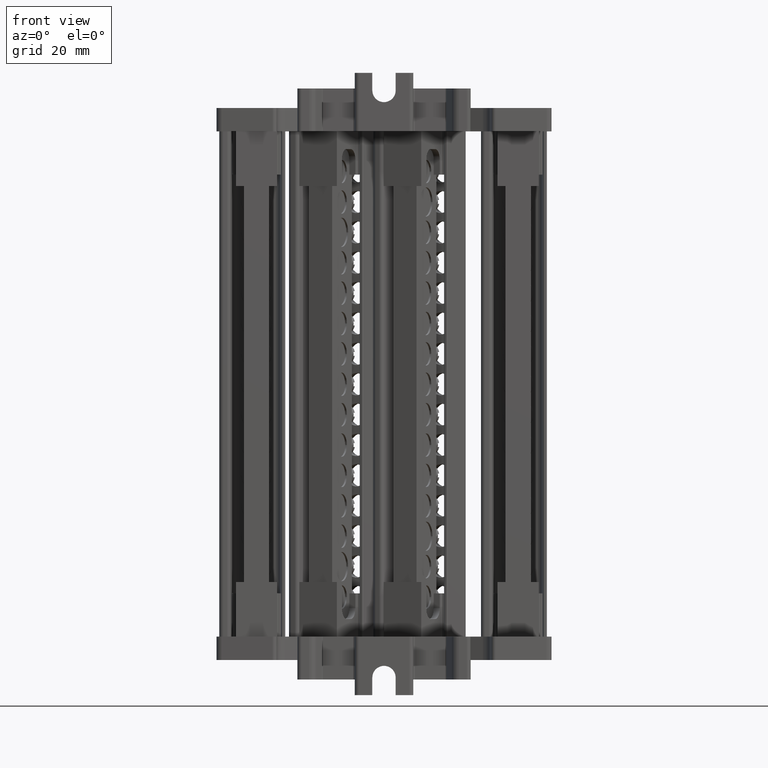
[diagram: clean part render]
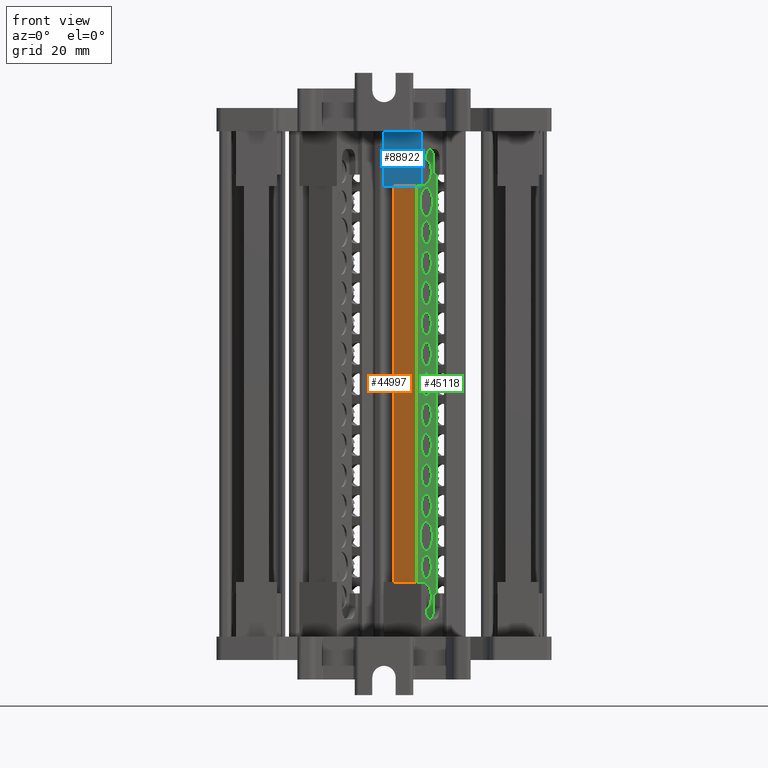
[diagram: same view with three faces highlighted in distinct colors, each labeled with its STEP entity id]
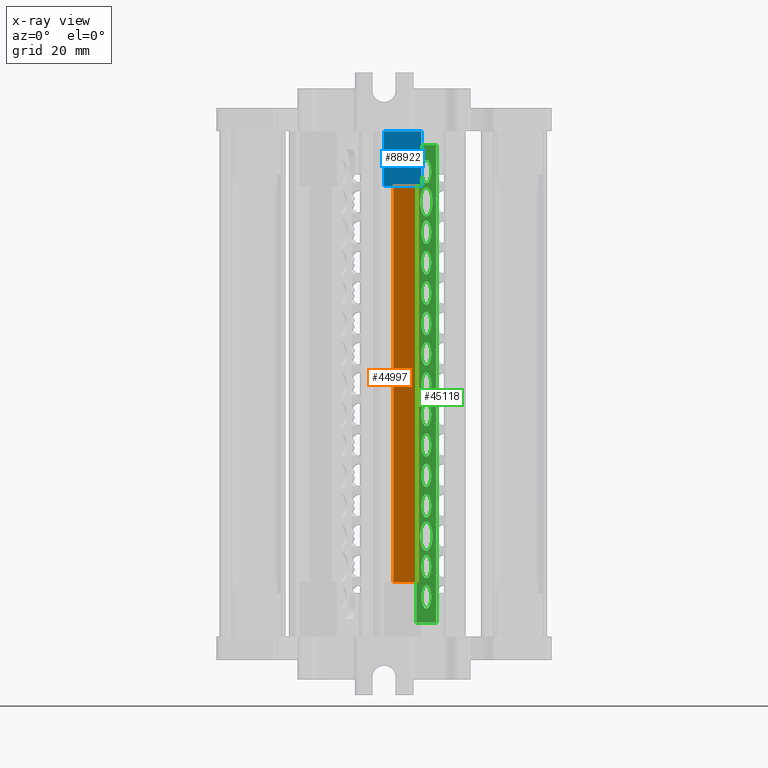
[diagram: x-ray of the same camera — body ghosted, the three highlighted faces saturated]
A machine part, front view with three faces highlighted in distinct colors.
The next image is the same camera in x-ray (body ghosted, the three faces saturated) — at least one of them is partly hidden behind the body in this view.
Their STEP definitions:

[orange] entity #44997 — the highlighted planar face has unit normal (0.4226, 0.9063, -0).
#107 = EDGE_LOOP ( 'NONE', ( #108904, #116199, #108925, #116096 ) ) ;
#14619 = AXIS2_PLACEMENT_3D ( 'NONE', #93181, #93208, #93162 ) ;
#44997 = ADVANCED_FACE ( 'NONE', ( #93199 ), #93163, .F. ) ;
#45711 = EDGE_CURVE ( 'NONE', #95113, #95402, #107215, .T. ) ;
#45724 = EDGE_CURVE ( 'NONE', #95200, #95307, #107347, .T. ) ;
#45748 = EDGE_CURVE ( 'NONE', #95200, #95113, #107390, .T. ) ;
#45801 = EDGE_CURVE ( 'NONE', #95307, #95402, #105453, .T. ) ;
#56486 = CARTESIAN_POINT ( 'NONE',  ( 401.5199442104104200, -98.70056587070742200, 82.27722964847156100 ) ) ;
#56557 = CARTESIAN_POINT ( 'NONE',  ( 395.6289435946725300, -95.95354716939208100, 82.27722964847163200 ) ) ;
#56633 = CARTESIAN_POINT ( 'NONE',  ( 401.5199442104072300, -98.70056587070975200, -19.38801364844760800 ) ) ;
#56646 = CARTESIAN_POINT ( 'NONE',  ( 395.6289435946673600, -95.95354716939080200, -19.38801364844768200 ) ) ;
#93162 = DIRECTION ( 'NONE',  ( -0.9063077870365878800, 0.4226182617408324500, 0.0000000000000000000 ) ) ;
#93163 = PLANE ( 'NONE',  #14619 ) ;
#93181 = CARTESIAN_POINT ( 'NONE',  ( 395.6289435946656600, -95.95354716939333200, -29.87739199998634700 ) ) ;
#93199 = FACE_OUTER_BOUND ( 'NONE', #107, .T. ) ;
#93208 = DIRECTION ( 'NONE',  ( 0.4226182617408325000, 0.9063077870365879900, -7.754922675462960100E-014 ) ) ;
#93717 = VECTOR ( 'NONE', #107220, 1000.000000000000000 ) ;
#93721 = VECTOR ( 'NONE', #107290, 1000.000000000000000 ) ;
#93739 = VECTOR ( 'NONE', #105148, 1000.000000000000100 ) ;
#93830 = VECTOR ( 'NONE', #105374, 1000.000000000000100 ) ;
#95113 = VERTEX_POINT ( 'NONE', #56486 ) ;
#95200 = VERTEX_POINT ( 'NONE', #56557 ) ;
#95307 = VERTEX_POINT ( 'NONE', #56646 ) ;
#95402 = VERTEX_POINT ( 'NONE', #56633 ) ;
#105148 = DIRECTION ( 'NONE',  ( 0.9063077870365878800, -0.4226182617408324500, -0.0000000000000000000 ) ) ;
#105374 = DIRECTION ( 'NONE',  ( 0.9063077870364585300, -0.4226182617411098900, 2.188420385077602700E-014 ) ) ;
#105425 = CARTESIAN_POINT ( 'NONE',  ( 395.6289435946672500, -95.95354716939111500, -19.38801364844764700 ) ) ;
#105453 = LINE ( 'NONE', #105425, #93830 ) ;
#107191 = CARTESIAN_POINT ( 'NONE',  ( 401.5199442104087100, -98.70056587071117300, -29.87739199998634700 ) ) ;
#107215 = LINE ( 'NONE', #107191, #93717 ) ;
#107220 = DIRECTION ( 'NONE',  ( -3.277371941038721700E-014, -7.028346808638690700E-014, -1.000000000000000000 ) ) ;
#107290 = DIRECTION ( 'NONE',  ( -4.642890210157350900E-014, 2.165015260970073500E-014, -1.000000000000000000 ) ) ;
#107301 = CARTESIAN_POINT ( 'NONE',  ( 395.6289435946683300, -95.95354716938754800, -29.87739199998729200 ) ) ;
#107347 = LINE ( 'NONE', #107301, #93721 ) ;
#107390 = LINE ( 'NONE', #107448, #93739 ) ;
#107448 = CARTESIAN_POINT ( 'NONE',  ( 395.6289435946693500, -95.95354716938544500, 82.27722964847158900 ) ) ;
#108904 = ORIENTED_EDGE ( 'NONE', *, *, #45711, .F. ) ;
#108925 = ORIENTED_EDGE ( 'NONE', *, *, #45724, .T. ) ;
#116096 = ORIENTED_EDGE ( 'NONE', *, *, #45801, .T. ) ;
#116199 = ORIENTED_EDGE ( 'NONE', *, *, #45748, .F. ) ;

[blue] entity #88922 — the highlighted planar face has unit normal (-0.4226, -0.9063, -0).
#15260 = VECTOR ( 'NONE', #16484, 1000.000000000000100 ) ;
#16481 = LINE ( 'NONE', #16504, #15260 ) ;
#16484 = DIRECTION ( 'NONE',  ( 0.9063077870366494900, -0.4226182617407002200, 0.0000000000000000000 ) ) ;
#16504 = CARTESIAN_POINT ( 'NONE',  ( 369.1089821040920400, -85.26032163160803600, 82.27722964847171700 ) ) ;
#21556 = VERTEX_POINT ( 'NONE', #73156 ) ;
#21562 = VERTEX_POINT ( 'NONE', #73103 ) ;
#24295 = VECTOR ( 'NONE', #25925, 1000.000000000000100 ) ;
#25925 = DIRECTION ( 'NONE',  ( 0.9063077870366591500, -0.4226182617406796200, 0.0000000000000000000 ) ) ;
#25940 = LINE ( 'NONE', #25956, #24295 ) ;
#25956 = CARTESIAN_POINT ( 'NONE',  ( 393.1261384605620000, -96.45970556773747300, 96.29460800001189100 ) ) ;
#33866 = EDGE_CURVE ( 'NONE', #21556, #21562, #25940, .T. ) ;
#36360 = EDGE_CURVE ( 'NONE', #96668, #96595, #16481, .T. ) ;
#50592 = AXIS2_PLACEMENT_3D ( 'NONE', #53382, #53356, #53362 ) ;
#53356 = DIRECTION ( 'NONE',  ( -0.4226182617407002700, -0.9063077870366496000, -9.420882699251660000E-014 ) ) ;
#53359 = PLANE ( 'NONE',  #50592 ) ;
#53362 = DIRECTION ( 'NONE',  ( 0.9063077870366494900, -0.4226182617407002200, 0.0000000000000000000 ) ) ;
#53381 = FACE_OUTER_BOUND ( 'NONE', #78285, .T. ) ;
#53382 = CARTESIAN_POINT ( 'NONE',  ( 369.1089821040914700, -85.26032163160923000, 96.29460800001101000 ) ) ;
#54982 = ORIENTED_EDGE ( 'NONE', *, *, #36360, .T. ) ;
#55003 = ORIENTED_EDGE ( 'NONE', *, *, #33866, .F. ) ;
#55006 = ORIENTED_EDGE ( 'NONE', *, *, #63269, .T. ) ;
#55035 = ORIENTED_EDGE ( 'NONE', *, *, #63097, .F. ) ;
#61612 = CARTESIAN_POINT ( 'NONE',  ( 402.7409765116762500, -100.9431781828914900, 82.27722964847154700 ) ) ;
#61793 = CARTESIAN_POINT ( 'NONE',  ( 393.1261384605625200, -96.45970556773623600, 82.27722964847178800 ) ) ;
#63097 = EDGE_CURVE ( 'NONE', #21562, #96595, #116028, .T. ) ;
#63269 = EDGE_CURVE ( 'NONE', #21556, #96668, #116216, .T. ) ;
#73103 = CARTESIAN_POINT ( 'NONE',  ( 402.7409765116764200, -100.9431781828919600, 96.29460800001187700 ) ) ;
#73156 = CARTESIAN_POINT ( 'NONE',  ( 393.1261384605620000, -96.45970556773745800, 96.29460800001189100 ) ) ;
#78285 = EDGE_LOOP ( 'NONE', ( #55003, #55006, #54982, #55035 ) ) ;
#88922 = ADVANCED_FACE ( 'NONE', ( #53381 ), #53359, .T. ) ;
#96595 = VERTEX_POINT ( 'NONE', #61612 ) ;
#96668 = VERTEX_POINT ( 'NONE', #61793 ) ;
#108313 = VECTOR ( 'NONE', #116056, 1000.000000000000000 ) ;
#108553 = VECTOR ( 'NONE', #116262, 1000.000000000000000 ) ;
#116028 = LINE ( 'NONE', #116055, #108313 ) ;
#116055 = CARTESIAN_POINT ( 'NONE',  ( 402.7409765116746600, -100.9431781828911600, 12.62052800000982500 ) ) ;
#116056 = DIRECTION ( 'NONE',  ( -2.014382204480699000E-014, 9.393218484001439600E-015, -1.000000000000000000 ) ) ;
#116216 = LINE ( 'NONE', #116258, #108553 ) ;
#116258 = CARTESIAN_POINT ( 'NONE',  ( 393.1261384605620000, -96.45970556773744400, 96.29460800001101000 ) ) ;
#116262 = DIRECTION ( 'NONE',  ( 3.981437070420772900E-014, 8.538219351090629600E-014, -1.000000000000000000 ) ) ;

[green] entity #45118 — the highlighted planar face has unit normal (0.9063, -0.4226, -0).
#60 = EDGE_LOOP ( 'NONE', ( #41332, #41357 ) ) ;
#67 = EDGE_LOOP ( 'NONE', ( #41369, #41349 ) ) ;
#68 = EDGE_LOOP ( 'NONE', ( #41423, #41425 ) ) ;
#70 = EDGE_LOOP ( 'NONE', ( #41243, #41375 ) ) ;
#77 = EDGE_LOOP ( 'NONE', ( #41315, #41362 ) ) ;
#78 = EDGE_LOOP ( 'NONE', ( #41415, #41344 ) ) ;
#80 = EDGE_LOOP ( 'NONE', ( #41312, #41380 ) ) ;
#82 = EDGE_LOOP ( 'NONE', ( #41306, #41383 ) ) ;
#84 = EDGE_LOOP ( 'NONE', ( #41242, #41353 ) ) ;
#91 = EDGE_LOOP ( 'NONE', ( #41366, #41418 ) ) ;
#100 = EDGE_LOOP ( 'NONE', ( #41313, #41364 ) ) ;
#101 = EDGE_LOOP ( 'NONE', ( #41388, #41347 ) ) ;
#102 = EDGE_LOOP ( 'NONE', ( #41336, #41346, #41307, #41379, #41427, #41416, #41360 ) ) ;
#112 = EDGE_LOOP ( 'NONE', ( #41317, #41252 ) ) ;
#117 = EDGE_LOOP ( 'NONE', ( #41241, #41371 ) ) ;
#121 = EDGE_LOOP ( 'NONE', ( #41399, #41246 ) ) ;
#2210 = VERTEX_POINT ( 'NONE', #65735 ) ;
#2273 = VERTEX_POINT ( 'NONE', #65887 ) ;
#23343 = VERTEX_POINT ( 'NONE', #74913 ) ;
#23352 = VERTEX_POINT ( 'NONE', #74883 ) ;
#23354 = VERTEX_POINT ( 'NONE', #74896 ) ;
#23356 = VERTEX_POINT ( 'NONE', #74814 ) ;
#23358 = VERTEX_POINT ( 'NONE', #74850 ) ;
#23359 = VERTEX_POINT ( 'NONE', #74856 ) ;
#23364 = VERTEX_POINT ( 'NONE', #74891 ) ;
#23367 = VERTEX_POINT ( 'NONE', #74868 ) ;
#23371 = VERTEX_POINT ( 'NONE', #74894 ) ;
#23373 = VERTEX_POINT ( 'NONE', #75010 ) ;
#23378 = VERTEX_POINT ( 'NONE', #74980 ) ;
#23380 = VERTEX_POINT ( 'NONE', #74982 ) ;
#23382 = VERTEX_POINT ( 'NONE', #74956 ) ;
#23389 = VERTEX_POINT ( 'NONE', #75012 ) ;
#23397 = VERTEX_POINT ( 'NONE', #74994 ) ;
#23405 = VERTEX_POINT ( 'NONE', #74955 ) ;
#23422 = VERTEX_POINT ( 'NONE', #74959 ) ;
#23423 = VERTEX_POINT ( 'NONE', #75031 ) ;
#23425 = VERTEX_POINT ( 'NONE', #74952 ) ;
#23427 = VERTEX_POINT ( 'NONE', #74971 ) ;
#23434 = VERTEX_POINT ( 'NONE', #74945 ) ;
#23435 = VERTEX_POINT ( 'NONE', #74947 ) ;
#23445 = VERTEX_POINT ( 'NONE', #74939 ) ;
#23450 = VERTEX_POINT ( 'NONE', #75021 ) ;
#28217 = VERTEX_POINT ( 'NONE', #73772 ) ;
#28245 = VERTEX_POINT ( 'NONE', #73804 ) ;
#28299 = VERTEX_POINT ( 'NONE', #73811 ) ;
#28325 = VERTEX_POINT ( 'NONE', #73866 ) ;
#28326 = VERTEX_POINT ( 'NONE', #73855 ) ;
#28389 = VERTEX_POINT ( 'NONE', #73889 ) ;
#38198 = DIRECTION ( 'NONE',  ( -0.9063077870365879900, 0.4226182617408325000, 5.122862538055090100E-014 ) ) ;
#38209 = CARTESIAN_POINT ( 'NONE',  ( 404.0556537808539000, -93.26271914848585700, 39.17260800001284300 ) ) ;
#38212 = CARTESIAN_POINT ( 'NONE',  ( 404.0556537808521400, -93.26271914848702200, 15.77260800001286400 ) ) ;
#38220 = CARTESIAN_POINT ( 'NONE',  ( 404.0556537808545800, -93.26271914848547300, 46.97260800001287600 ) ) ;
#38232 = DIRECTION ( 'NONE',  ( -0.9063077870365879900, 0.4226182617408325000, 5.122862538055090100E-014 ) ) ;
#38233 = DIRECTION ( 'NONE',  ( -0.9063077870365879900, 0.4226182617408325000, 5.122862538055090100E-014 ) ) ;
#38248 = DIRECTION ( 'NONE',  ( -0.4226182617408359400, -0.9063077870365863200, 0.0000000000000000000 ) ) ;
#38259 = DIRECTION ( 'NONE',  ( -0.4226182617408359400, -0.9063077870365863200, 0.0000000000000000000 ) ) ;
#38261 = DIRECTION ( 'NONE',  ( -0.4226182617408359400, -0.9063077870365863200, 0.0000000000000000000 ) ) ;
#38299 = DIRECTION ( 'NONE',  ( -0.9063077870365879900, 0.4226182617408325000, 5.122862538055090100E-014 ) ) ;
#38335 = DIRECTION ( 'NONE',  ( -0.4226182617408359400, -0.9063077870365863200, 0.0000000000000000000 ) ) ;
#38371 = CARTESIAN_POINT ( 'NONE',  ( 404.0556537808557800, -93.26271914848469200, 62.57260800001282800 ) ) ;
#38424 = DIRECTION ( 'NONE',  ( -0.4226182617408359400, -0.9063077870365863200, 0.0000000000000000000 ) ) ;
#38434 = CARTESIAN_POINT ( 'NONE',  ( 404.0556537808551500, -93.26271914848513200, 54.77260800001286600 ) ) ;
#38441 = DIRECTION ( 'NONE',  ( -0.9063077870365879900, 0.4226182617408325000, 5.122862538055090100E-014 ) ) ;
#38545 = DIRECTION ( 'NONE',  ( -0.4226182617408359400, -0.9063077870365863200, 0.0000000000000000000 ) ) ;
#38550 = DIRECTION ( 'NONE',  ( -0.9063077870365879900, 0.4226182617408325000, 5.122862538055090100E-014 ) ) ;
#38556 = DIRECTION ( 'NONE',  ( -0.9063077870365879900, 0.4226182617408325000, 5.122862538055090100E-014 ) ) ;
#38562 = DIRECTION ( 'NONE',  ( -0.4226182617408352800, -0.9063077870365866500, 0.0000000000000000000 ) ) ;
#38564 = DIRECTION ( 'NONE',  ( -0.4226182617408359400, -0.9063077870365863200, 0.0000000000000000000 ) ) ;
#38570 = CARTESIAN_POINT ( 'NONE',  ( 404.0556537808508300, -93.26271914848774700, 0.1726080000128658900 ) ) ;
#38572 = CARTESIAN_POINT ( 'NONE',  ( 404.0556537808533900, -93.26271914848618400, 31.37260800001281100 ) ) ;
#38607 = CARTESIAN_POINT ( 'NONE',  ( 404.0556537808502100, -93.26271914848815900, -7.627391999987165300 ) ) ;
#38613 = DIRECTION ( 'NONE',  ( -0.9063077870365879900, 0.4226182617408325000, 5.122862538055090100E-014 ) ) ;
#38633 = CARTESIAN_POINT ( 'NONE',  ( 404.0556537808570300, -93.26271914848392400, 78.17260800001282900 ) ) ;
#38645 = DIRECTION ( 'NONE',  ( -0.9063077870365879900, 0.4226182617408325000, 5.122862538055090100E-014 ) ) ;
#38651 = CARTESIAN_POINT ( 'NONE',  ( 404.0556537808514600, -93.26271914848734900, 7.972608000012843200 ) ) ;
#38669 = DIRECTION ( 'NONE',  ( -0.4226182617408359400, -0.9063077870365863200, 0.0000000000000000000 ) ) ;
#38687 = DIRECTION ( 'NONE',  ( -0.4226182617408352800, -0.9063077870365866500, 0.0000000000000000000 ) ) ;
#38690 = DIRECTION ( 'NONE',  ( -0.9063077870365879900, 0.4226182617408325000, 5.122862538055090100E-014 ) ) ;
#38726 = CARTESIAN_POINT ( 'NONE',  ( 404.0556537808526500, -93.26271914848663900, 23.57260800001283800 ) ) ;
#38738 = DIRECTION ( 'NONE',  ( -0.9063077870365879900, 0.4226182617408325000, 5.122862538055090100E-014 ) ) ;
#38754 = DIRECTION ( 'NONE',  ( -0.4226182617408359400, -0.9063077870365863200, 0.0000000000000000000 ) ) ;
#38790 = DIRECTION ( 'NONE',  ( -0.9063077870365879900, 0.4226182617408325000, 5.122862538055090100E-014 ) ) ;
#38792 = DIRECTION ( 'NONE',  ( -0.4226182617408359400, -0.9063077870365863200, 0.0000000000000000000 ) ) ;
#38815 = CARTESIAN_POINT ( 'NONE',  ( 404.0556537808489600, -93.26271914848888400, -23.22739199998716600 ) ) ;
#38856 = DIRECTION ( 'NONE',  ( -0.9063077870365879900, 0.4226182617408325000, 5.122862538055090100E-014 ) ) ;
#38858 = DIRECTION ( 'NONE',  ( -0.4226182617408359400, -0.9063077870365863200, 0.0000000000000000000 ) ) ;
#38870 = CARTESIAN_POINT ( 'NONE',  ( 404.0556537808496400, -93.26271914848848600, -15.42739199998713700 ) ) ;
#38992 = CARTESIAN_POINT ( 'NONE',  ( 404.0556537808576000, -93.26271914848355500, 85.97260800001285500 ) ) ;
#39006 = DIRECTION ( 'NONE',  ( -0.4226182617408359400, -0.9063077870365863200, 0.0000000000000000000 ) ) ;
#39032 = DIRECTION ( 'NONE',  ( -0.9063077870365879900, 0.4226182617408325000, 5.122862538055090100E-014 ) ) ;
#40118 = DIRECTION ( 'NONE',  ( -0.9063077870365879900, 0.4226182617408325000, 5.122862538055090100E-014 ) ) ;
#40138 = CARTESIAN_POINT ( 'NONE',  ( 404.0556537808564000, -93.26271914848435100, 70.37260800001286000 ) ) ;
#40158 = DIRECTION ( 'NONE',  ( -0.4226182617408359400, -0.9063077870365863200, 0.0000000000000000000 ) ) ;
#41241 = ORIENTED_EDGE ( 'NONE', *, *, #130919, .T. ) ;
#41242 = ORIENTED_EDGE ( 'NONE', *, *, #130937, .T. ) ;
#41243 = ORIENTED_EDGE ( 'NONE', *, *, #130911, .T. ) ;
#41246 = ORIENTED_EDGE ( 'NONE', *, *, #87657, .T. ) ;
#41252 = ORIENTED_EDGE ( 'NONE', *, *, #87710, .T. ) ;
#41306 = ORIENTED_EDGE ( 'NONE', *, *, #130945, .T. ) ;
#41307 = ORIENTED_EDGE ( 'NONE', *, *, #45758, .F. ) ;
#41312 = ORIENTED_EDGE ( 'NONE', *, *, #130909, .T. ) ;
#41313 = ORIENTED_EDGE ( 'NONE', *, *, #130934, .T. ) ;
#41315 = ORIENTED_EDGE ( 'NONE', *, *, #130964, .T. ) ;
#41317 = ORIENTED_EDGE ( 'NONE', *, *, #130925, .T. ) ;
#41332 = ORIENTED_EDGE ( 'NONE', *, *, #130962, .T. ) ;
#41336 = ORIENTED_EDGE ( 'NONE', *, *, #45711, .T. ) ;
#41344 = ORIENTED_EDGE ( 'NONE', *, *, #87829, .T. ) ;
#41346 = ORIENTED_EDGE ( 'NONE', *, *, #45745, .T. ) ;
#41347 = ORIENTED_EDGE ( 'NONE', *, *, #87711, .T. ) ;
#41349 = ORIENTED_EDGE ( 'NONE', *, *, #87722, .T. ) ;
#41353 = ORIENTED_EDGE ( 'NONE', *, *, #87800, .T. ) ;
#41357 = ORIENTED_EDGE ( 'NONE', *, *, #87706, .T. ) ;
#41360 = ORIENTED_EDGE ( 'NONE', *, *, #128288, .T. ) ;
#41362 = ORIENTED_EDGE ( 'NONE', *, *, #87782, .T. ) ;
#41364 = ORIENTED_EDGE ( 'NONE', *, *, #87815, .T. ) ;
#41366 = ORIENTED_EDGE ( 'NONE', *, *, #130952, .T. ) ;
#41369 = ORIENTED_EDGE ( 'NONE', *, *, #130965, .T. ) ;
#41371 = ORIENTED_EDGE ( 'NONE', *, *, #87776, .T. ) ;
#41375 = ORIENTED_EDGE ( 'NONE', *, *, #87745, .T. ) ;
#41379 = ORIENTED_EDGE ( 'NONE', *, *, #45792, .T. ) ;
#41380 = ORIENTED_EDGE ( 'NONE', *, *, #87838, .T. ) ;
#41383 = ORIENTED_EDGE ( 'NONE', *, *, #87807, .T. ) ;
#41388 = ORIENTED_EDGE ( 'NONE', *, *, #130963, .T. ) ;
#41399 = ORIENTED_EDGE ( 'NONE', *, *, #130932, .T. ) ;
#41415 = ORIENTED_EDGE ( 'NONE', *, *, #130931, .T. ) ;
#41416 = ORIENTED_EDGE ( 'NONE', *, *, #130929, .T. ) ;
#41418 = ORIENTED_EDGE ( 'NONE', *, *, #87780, .T. ) ;
#41423 = ORIENTED_EDGE ( 'NONE', *, *, #130913, .T. ) ;
#41425 = ORIENTED_EDGE ( 'NONE', *, *, #87794, .T. ) ;
#41427 = ORIENTED_EDGE ( 'NONE', *, *, #45873, .T. ) ;
#45118 = ADVANCED_FACE ( 'NONE', ( #96165, #96131, #96104, #96169, #96092, #96069, #96138, #96121, #96153, #96108, #96113, #96144, #96125, #96167, #96182, #96184 ), #96082, .T. ) ;
#45711 = EDGE_CURVE ( 'NONE', #95113, #95402, #107215, .T. ) ;
#45745 = EDGE_CURVE ( 'NONE', #95402, #95444, #107385, .T. ) ;
#45758 = EDGE_CURVE ( 'NONE', #95351, #95444, #105185, .T. ) ;
#45792 = EDGE_CURVE ( 'NONE', #95351, #95387, #105309, .T. ) ;
#45873 = EDGE_CURVE ( 'NONE', #95387, #2273, #105678, .T. ) ;
#56486 = CARTESIAN_POINT ( 'NONE',  ( 401.5199442104104200, -98.70056587070742200, 82.27722964847156100 ) ) ;
#56626 = CARTESIAN_POINT ( 'NONE',  ( 406.5913633512934700, -87.82487242626972100, -29.87739199998760900 ) ) ;
#56633 = CARTESIAN_POINT ( 'NONE',  ( 401.5199442104072300, -98.70056587070975200, -19.38801364844760800 ) ) ;
#56644 = CARTESIAN_POINT ( 'NONE',  ( 404.2669629117189600, -92.80956525497074900, -29.87739199998709000 ) ) ;
#56757 = CARTESIAN_POINT ( 'NONE',  ( 401.5199442104035400, -98.70056587070861600, -29.87739199998686200 ) ) ;
#65735 = CARTESIAN_POINT ( 'NONE',  ( 401.5199442104067800, -98.70056587071091800, 92.76260800001283300 ) ) ;
#65887 = CARTESIAN_POINT ( 'NONE',  ( 406.5913633512980100, -87.82487242626486100, 92.76260800001239200 ) ) ;
#71405 = DIRECTION ( 'NONE',  ( -4.642890210157350900E-014, 2.165015260970073500E-014, -1.000000000000000000 ) ) ;
#71411 = LINE ( 'NONE', #71416, #72047 ) ;
#71416 = CARTESIAN_POINT ( 'NONE',  ( 401.5199442104032500, -98.70056587070926900, -29.87739199998762600 ) ) ;
#72047 = VECTOR ( 'NONE', #71405, 1000.000000000000000 ) ;
#73772 = CARTESIAN_POINT ( 'NONE',  ( 402.7877989956338600, -95.98164250959412400, 70.37260800001286000 ) ) ;
#73804 = CARTESIAN_POINT ( 'NONE',  ( 405.3235085660783200, -90.54379578737491800, 62.57260800001282800 ) ) ;
#73811 = CARTESIAN_POINT ( 'NONE',  ( 402.7877989956326700, -95.98164250959490600, 54.77260800001286600 ) ) ;
#73855 = CARTESIAN_POINT ( 'NONE',  ( 405.3235085660788900, -90.54379578737457700, 70.37260800001286000 ) ) ;
#73866 = CARTESIAN_POINT ( 'NONE',  ( 402.7877989956333000, -95.98164250959445100, 62.57260800001282800 ) ) ;
#73889 = CARTESIAN_POINT ( 'NONE',  ( 405.3235085660776900, -90.54379578737535900, 54.77260800001286600 ) ) ;
#74814 = CARTESIAN_POINT ( 'NONE',  ( 405.3235085660739400, -90.54379578737759000, 7.972608000012843200 ) ) ;
#74850 = CARTESIAN_POINT ( 'NONE',  ( 405.3235085660733700, -90.54379578737797400, 0.1726080000128662800 ) ) ;
#74856 = CARTESIAN_POINT ( 'NONE',  ( 405.3235085660721200, -90.54379578737872700, -15.42739199998713700 ) ) ;
#74868 = CARTESIAN_POINT ( 'NONE',  ( 402.7877989956301700, -95.98164250959639800, 23.57260800001283800 ) ) ;
#74883 = CARTESIAN_POINT ( 'NONE',  ( 405.3235085660751900, -90.54379578737685100, 23.57260800001283800 ) ) ;
#74891 = CARTESIAN_POINT ( 'NONE',  ( 402.7877989956271000, -95.98164250959825900, -15.42739199998713700 ) ) ;
#74894 = CARTESIAN_POINT ( 'NONE',  ( 402.7877989956289200, -95.98164250959712300, 7.972608000012843200 ) ) ;
#74896 = CARTESIAN_POINT ( 'NONE',  ( 405.3235085660801400, -90.54379578737378200, 85.97260800001285500 ) ) ;
#74913 = CARTESIAN_POINT ( 'NONE',  ( 402.7877989956351100, -95.98164250959331400, 85.97260800001285500 ) ) ;
#74939 = CARTESIAN_POINT ( 'NONE',  ( 402.7877989956320400, -95.98164250959523300, 46.97260800001287600 ) ) ;
#74945 = CARTESIAN_POINT ( 'NONE',  ( 405.3235085660714400, -90.54379578737911100, -23.22739199998716600 ) ) ;
#74947 = CARTESIAN_POINT ( 'NONE',  ( 405.3235085660763800, -90.54379578737608400, 39.17260800001284300 ) ) ;
#74952 = CARTESIAN_POINT ( 'NONE',  ( 402.7877989956296000, -95.98164250959678200, 15.77260800001286400 ) ) ;
#74955 = CARTESIAN_POINT ( 'NONE',  ( 402.7877989956313600, -95.98164250959561600, 39.17260800001284300 ) ) ;
#74956 = CARTESIAN_POINT ( 'NONE',  ( 402.7877989956264200, -95.98164250959864300, -23.22739199998716600 ) ) ;
#74959 = CARTESIAN_POINT ( 'NONE',  ( 405.6404722623783500, -89.86406494710094300, -7.627391999987164400 ) ) ;
#74971 = CARTESIAN_POINT ( 'NONE',  ( 402.4708352993288800, -96.66137334987114100, 78.17260800001282900 ) ) ;
#74980 = CARTESIAN_POINT ( 'NONE',  ( 405.3235085660770700, -90.54379578737568600, 46.97260800001287600 ) ) ;
#74982 = CARTESIAN_POINT ( 'NONE',  ( 405.3235085660759300, -90.54379578737641100, 31.37260800001281100 ) ) ;
#74994 = CARTESIAN_POINT ( 'NONE',  ( 402.7877989956309100, -95.98164250959595700, 31.37260800001281100 ) ) ;
#75010 = CARTESIAN_POINT ( 'NONE',  ( 402.7877989956283500, -95.98164250959750600, 0.1726080000128658900 ) ) ;
#75012 = CARTESIAN_POINT ( 'NONE',  ( 405.6404722623851200, -89.86406494709669300, 78.17260800001282900 ) ) ;
#75021 = CARTESIAN_POINT ( 'NONE',  ( 402.4708352993221200, -96.66137334987537600, -7.627391999987165300 ) ) ;
#75031 = CARTESIAN_POINT ( 'NONE',  ( 405.3235085660746200, -90.54379578737724900, 15.77260800001286400 ) ) ;
#85017 = AXIS2_PLACEMENT_3D ( 'NONE', #89304, #89351, #89307 ) ;
#85027 = VECTOR ( 'NONE', #89239, 1000.000000000000100 ) ;
#85031 = CIRCLE ( 'NONE', #85071, 3.750000000000014700 ) ;
#85036 = CIRCLE ( 'NONE', #85062, 3.000000000000007100 ) ;
#85042 = CIRCLE ( 'NONE', #85047, 3.000000000000007100 ) ;
#85043 = AXIS2_PLACEMENT_3D ( 'NONE', #89229, #89173, #89219 ) ;
#85047 = AXIS2_PLACEMENT_3D ( 'NONE', #89215, #89177, #89190 ) ;
#85049 = CIRCLE ( 'NONE', #85050, 3.000000000000007100 ) ;
#85050 = AXIS2_PLACEMENT_3D ( 'NONE', #89267, #89338, #89318 ) ;
#85051 = CIRCLE ( 'NONE', #85074, 3.000000000000007100 ) ;
#85052 = AXIS2_PLACEMENT_3D ( 'NONE', #89149, #89157, #89160 ) ;
#85055 = CIRCLE ( 'NONE', #85052, 3.000000000000007100 ) ;
#85061 = CIRCLE ( 'NONE', #85017, 3.000000000000007100 ) ;
#85062 = AXIS2_PLACEMENT_3D ( 'NONE', #89300, #89340, #89290 ) ;
#85063 = CIRCLE ( 'NONE', #85075, 3.000000000000007100 ) ;
#85071 = AXIS2_PLACEMENT_3D ( 'NONE', #89294, #89343, #89322 ) ;
#85074 = AXIS2_PLACEMENT_3D ( 'NONE', #89088, #89133, #89110 ) ;
#85075 = AXIS2_PLACEMENT_3D ( 'NONE', #89146, #89131, #89135 ) ;
#85076 = CIRCLE ( 'NONE', #85043, 3.000000000000007100 ) ;
#85080 = AXIS2_PLACEMENT_3D ( 'NONE', #89431, #89384, #89436 ) ;
#85094 = AXIS2_PLACEMENT_3D ( 'NONE', #89440, #89458, #89512 ) ;
#85099 = AXIS2_PLACEMENT_3D ( 'NONE', #89430, #89438, #89354 ) ;
#85101 = AXIS2_PLACEMENT_3D ( 'NONE', #89450, #89473, #89497 ) ;
#85107 = CIRCLE ( 'NONE', #85101, 3.750000000000014700 ) ;
#85111 = CIRCLE ( 'NONE', #85099, 3.000000000000007100 ) ;
#85115 = AXIS2_PLACEMENT_3D ( 'NONE', #89461, #89466, #89510 ) ;
#85128 = CIRCLE ( 'NONE', #85136, 3.000000000000007100 ) ;
#85130 = CIRCLE ( 'NONE', #85115, 3.000000000000007100 ) ;
#85134 = CIRCLE ( 'NONE', #85080, 3.000000000000007100 ) ;
#85136 = AXIS2_PLACEMENT_3D ( 'NONE', #89453, #89479, #89504 ) ;
#85137 = CIRCLE ( 'NONE', #85094, 3.000000000000007100 ) ;
#87657 = EDGE_CURVE ( 'NONE', #28326, #28217, #124532, .T. ) ;
#87706 = EDGE_CURVE ( 'NONE', #23423, #23425, #124631, .T. ) ;
#87710 = EDGE_CURVE ( 'NONE', #23378, #23445, #124673, .T. ) ;
#87711 = EDGE_CURVE ( 'NONE', #23435, #23405, #124676, .T. ) ;
#87722 = EDGE_CURVE ( 'NONE', #28245, #28325, #124649, .T. ) ;
#87745 = EDGE_CURVE ( 'NONE', #28389, #28299, #124637, .T. ) ;
#87776 = EDGE_CURVE ( 'NONE', #23380, #23397, #124760, .T. ) ;
#87780 = EDGE_CURVE ( 'NONE', #23358, #23373, #124716, .T. ) ;
#87782 = EDGE_CURVE ( 'NONE', #23422, #23450, #124734, .T. ) ;
#87794 = EDGE_CURVE ( 'NONE', #23356, #23371, #124744, .T. ) ;
#87800 = EDGE_CURVE ( 'NONE', #23389, #23427, #124706, .T. ) ;
#87807 = EDGE_CURVE ( 'NONE', #23434, #23382, #124728, .T. ) ;
#87815 = EDGE_CURVE ( 'NONE', #23352, #23367, #124779, .T. ) ;
#87829 = EDGE_CURVE ( 'NONE', #23359, #23364, #124793, .T. ) ;
#87838 = EDGE_CURVE ( 'NONE', #23354, #23343, #124766, .T. ) ;
#89088 = CARTESIAN_POINT ( 'NONE',  ( 404.0556537808576000, -93.26271914848355500, 85.97260800001285500 ) ) ;
#89110 = DIRECTION ( 'NONE',  ( -0.4226182617408359400, -0.9063077870365863200, 0.0000000000000000000 ) ) ;
#89131 = DIRECTION ( 'NONE',  ( -0.9063077870365879900, 0.4226182617408325000, 5.122862538055090100E-014 ) ) ;
#89133 = DIRECTION ( 'NONE',  ( -0.9063077870365879900, 0.4226182617408325000, 5.122862538055090100E-014 ) ) ;
#89135 = DIRECTION ( 'NONE',  ( -0.4226182617408359400, -0.9063077870365863200, 0.0000000000000000000 ) ) ;
#89146 = CARTESIAN_POINT ( 'NONE',  ( 404.0556537808551500, -93.26271914848513200, 54.77260800001286600 ) ) ;
#89149 = CARTESIAN_POINT ( 'NONE',  ( 404.0556537808514600, -93.26271914848734900, 7.972608000012843200 ) ) ;
#89157 = DIRECTION ( 'NONE',  ( -0.9063077870365879900, 0.4226182617408325000, 5.122862538055090100E-014 ) ) ;
#89160 = DIRECTION ( 'NONE',  ( -0.4226182617408359400, -0.9063077870365863200, 0.0000000000000000000 ) ) ;
#89173 = DIRECTION ( 'NONE',  ( -0.9063077870365879900, 0.4226182617408325000, 5.122862538055090100E-014 ) ) ;
#89177 = DIRECTION ( 'NONE',  ( -0.9063077870365879900, 0.4226182617408325000, 5.122862538055090100E-014 ) ) ;
#89190 = DIRECTION ( 'NONE',  ( -0.4226182617408359400, -0.9063077870365863200, 0.0000000000000000000 ) ) ;
#89215 = CARTESIAN_POINT ( 'NONE',  ( 404.0556537808545800, -93.26271914848547300, 46.97260800001287600 ) ) ;
#89219 = DIRECTION ( 'NONE',  ( -0.4226182617408359400, -0.9063077870365863200, 0.0000000000000000000 ) ) ;
#89224 = CARTESIAN_POINT ( 'NONE',  ( 406.5913633512992100, -87.82487242627236400, 92.76260800001239200 ) ) ;
#89229 = CARTESIAN_POINT ( 'NONE',  ( 404.0556537808533900, -93.26271914848618400, 31.37260800001281100 ) ) ;
#89239 = DIRECTION ( 'NONE',  ( -0.4226182617408324500, -0.9063077870365878800, -0.0000000000000000000 ) ) ;
#89260 = LINE ( 'NONE', #89224, #85027 ) ;
#89267 = CARTESIAN_POINT ( 'NONE',  ( 404.0556537808496400, -93.26271914848848600, -15.42739199998713700 ) ) ;
#89290 = DIRECTION ( 'NONE',  ( -0.4226182617408359400, -0.9063077870365863200, 0.0000000000000000000 ) ) ;
#89294 = CARTESIAN_POINT ( 'NONE',  ( 404.0556537808570300, -93.26271914848392400, 78.17260800001282900 ) ) ;
#89300 = CARTESIAN_POINT ( 'NONE',  ( 404.0556537808526500, -93.26271914848663900, 23.57260800001283800 ) ) ;
#89304 = CARTESIAN_POINT ( 'NONE',  ( 404.0556537808564000, -93.26271914848435100, 70.37260800001286000 ) ) ;
#89307 = DIRECTION ( 'NONE',  ( -0.4226182617408359400, -0.9063077870365863200, 0.0000000000000000000 ) ) ;
#89318 = DIRECTION ( 'NONE',  ( -0.4226182617408359400, -0.9063077870365863200, 0.0000000000000000000 ) ) ;
#89322 = DIRECTION ( 'NONE',  ( -0.4226182617408352800, -0.9063077870365866500, 0.0000000000000000000 ) ) ;
#89338 = DIRECTION ( 'NONE',  ( -0.9063077870365879900, 0.4226182617408325000, 5.122862538055090100E-014 ) ) ;
#89340 = DIRECTION ( 'NONE',  ( -0.9063077870365879900, 0.4226182617408325000, 5.122862538055090100E-014 ) ) ;
#89343 = DIRECTION ( 'NONE',  ( -0.9063077870365879900, 0.4226182617408325000, 5.122862538055090100E-014 ) ) ;
#89351 = DIRECTION ( 'NONE',  ( -0.9063077870365879900, 0.4226182617408325000, 5.122862538055090100E-014 ) ) ;
#89354 = DIRECTION ( 'NONE',  ( -0.4226182617408359400, -0.9063077870365863200, 0.0000000000000000000 ) ) ;
#89384 = DIRECTION ( 'NONE',  ( -0.9063077870365879900, 0.4226182617408325000, 5.122862538055090100E-014 ) ) ;
#89430 = CARTESIAN_POINT ( 'NONE',  ( 404.0556537808508300, -93.26271914848774700, 0.1726080000128658900 ) ) ;
#89431 = CARTESIAN_POINT ( 'NONE',  ( 404.0556537808489600, -93.26271914848888400, -23.22739199998716600 ) ) ;
#89436 = DIRECTION ( 'NONE',  ( -0.4226182617408359400, -0.9063077870365863200, 0.0000000000000000000 ) ) ;
#89438 = DIRECTION ( 'NONE',  ( -0.9063077870365879900, 0.4226182617408325000, 5.122862538055090100E-014 ) ) ;
#89440 = CARTESIAN_POINT ( 'NONE',  ( 404.0556537808557800, -93.26271914848469200, 62.57260800001282800 ) ) ;
#89450 = CARTESIAN_POINT ( 'NONE',  ( 404.0556537808502100, -93.26271914848815900, -7.627391999987165300 ) ) ;
#89453 = CARTESIAN_POINT ( 'NONE',  ( 404.0556537808539000, -93.26271914848585700, 39.17260800001284300 ) ) ;
#89458 = DIRECTION ( 'NONE',  ( -0.9063077870365879900, 0.4226182617408325000, 5.122862538055090100E-014 ) ) ;
#89461 = CARTESIAN_POINT ( 'NONE',  ( 404.0556537808521400, -93.26271914848702200, 15.77260800001286400 ) ) ;
#89466 = DIRECTION ( 'NONE',  ( -0.9063077870365879900, 0.4226182617408325000, 5.122862538055090100E-014 ) ) ;
#89473 = DIRECTION ( 'NONE',  ( -0.9063077870365879900, 0.4226182617408325000, 5.122862538055090100E-014 ) ) ;
#89479 = DIRECTION ( 'NONE',  ( -0.9063077870365879900, 0.4226182617408325000, 5.122862538055090100E-014 ) ) ;
#89497 = DIRECTION ( 'NONE',  ( -0.4226182617408352800, -0.9063077870365866500, 0.0000000000000000000 ) ) ;
#89504 = DIRECTION ( 'NONE',  ( -0.4226182617408359400, -0.9063077870365863200, 0.0000000000000000000 ) ) ;
#89510 = DIRECTION ( 'NONE',  ( -0.4226182617408359400, -0.9063077870365863200, 0.0000000000000000000 ) ) ;
#89512 = DIRECTION ( 'NONE',  ( -0.4226182617408359400, -0.9063077870365863200, 0.0000000000000000000 ) ) ;
#93717 = VECTOR ( 'NONE', #107220, 1000.000000000000000 ) ;
#93796 = VECTOR ( 'NONE', #105165, 1000.000000000000000 ) ;
#93800 = VECTOR ( 'NONE', #107452, 1000.000000000000000 ) ;
#93843 = VECTOR ( 'NONE', #105281, 1000.000000000000000 ) ;
#93889 = VECTOR ( 'NONE', #105715, 1000.000000000000000 ) ;
#94177 = AXIS2_PLACEMENT_3D ( 'NONE', #96084, #96127, #96101 ) ;
#95113 = VERTEX_POINT ( 'NONE', #56486 ) ;
#95351 = VERTEX_POINT ( 'NONE', #56644 ) ;
#95387 = VERTEX_POINT ( 'NONE', #56626 ) ;
#95402 = VERTEX_POINT ( 'NONE', #56633 ) ;
#95444 = VERTEX_POINT ( 'NONE', #56757 ) ;
#96069 = FACE_BOUND ( 'NONE', #117, .T. ) ;
#96082 = PLANE ( 'NONE',  #94177 ) ;
#96084 = CARTESIAN_POINT ( 'NONE',  ( 406.5913633512934700, -87.82487242626970700, -29.87739199998762600 ) ) ;
#96092 = FACE_BOUND ( 'NONE', #101, .T. ) ;
#96101 = DIRECTION ( 'NONE',  ( 0.4226182617408324500, 0.9063077870365878800, 0.0000000000000000000 ) ) ;
#96104 = FACE_BOUND ( 'NONE', #70, .T. ) ;
#96108 = FACE_BOUND ( 'NONE', #68, .T. ) ;
#96113 = FACE_BOUND ( 'NONE', #91, .T. ) ;
#96121 = FACE_BOUND ( 'NONE', #60, .T. ) ;
#96125 = FACE_BOUND ( 'NONE', #78, .T. ) ;
#96127 = DIRECTION ( 'NONE',  ( 0.9063077870365879900, -0.4226182617408325000, -5.122862538055095100E-014 ) ) ;
#96131 = FACE_BOUND ( 'NONE', #67, .T. ) ;
#96138 = FACE_BOUND ( 'NONE', #100, .T. ) ;
#96144 = FACE_BOUND ( 'NONE', #77, .T. ) ;
#96153 = FACE_OUTER_BOUND ( 'NONE', #102, .T. ) ;
#96165 = FACE_BOUND ( 'NONE', #121, .T. ) ;
#96167 = FACE_BOUND ( 'NONE', #82, .T. ) ;
#96169 = FACE_BOUND ( 'NONE', #112, .T. ) ;
#96182 = FACE_BOUND ( 'NONE', #84, .T. ) ;
#96184 = FACE_BOUND ( 'NONE', #80, .T. ) ;
#105113 = CARTESIAN_POINT ( 'NONE',  ( 404.2669629117189600, -92.80956525497073500, -29.87739199998699400 ) ) ;
#105165 = DIRECTION ( 'NONE',  ( -0.4226182617408291700, -0.9063077870365895400, 9.394194823751152000E-014 ) ) ;
#105185 = LINE ( 'NONE', #105113, #93796 ) ;
#105281 = DIRECTION ( 'NONE',  ( 0.4226182617408351700, 0.9063077870365866500, -7.758945001642057400E-014 ) ) ;
#105289 = CARTESIAN_POINT ( 'NONE',  ( 404.2669629117189600, -92.80956525497073500, -29.87739199998718200 ) ) ;
#105309 = LINE ( 'NONE', #105289, #93843 ) ;
#105678 = LINE ( 'NONE', #105713, #93889 ) ;
#105713 = CARTESIAN_POINT ( 'NONE',  ( 406.5913633512934700, -87.82487242626970700, -29.87739199998729200 ) ) ;
#105715 = DIRECTION ( 'NONE',  ( 3.277371941038721700E-014, 7.028346808638690700E-014, 1.000000000000000000 ) ) ;
#107191 = CARTESIAN_POINT ( 'NONE',  ( 401.5199442104087100, -98.70056587071117300, -29.87739199998634700 ) ) ;
#107215 = LINE ( 'NONE', #107191, #93717 ) ;
#107220 = DIRECTION ( 'NONE',  ( -3.277371941038721700E-014, -7.028346808638690700E-014, -1.000000000000000000 ) ) ;
#107385 = LINE ( 'NONE', #107388, #93800 ) ;
#107388 = CARTESIAN_POINT ( 'NONE',  ( 401.5199442104037600, -98.70056587070811800, -29.87739199998762600 ) ) ;
#107452 = DIRECTION ( 'NONE',  ( -4.642890210157350900E-014, 2.165015260970073500E-014, -1.000000000000000000 ) ) ;
#124532 = CIRCLE ( 'NONE', #124550, 3.000000000000007100 ) ;
#124550 = AXIS2_PLACEMENT_3D ( 'NONE', #40138, #40118, #40158 ) ;
#124574 = AXIS2_PLACEMENT_3D ( 'NONE', #38212, #38198, #38261 ) ;
#124631 = CIRCLE ( 'NONE', #124574, 3.000000000000007100 ) ;
#124637 = CIRCLE ( 'NONE', #124690, 3.000000000000007100 ) ;
#124649 = CIRCLE ( 'NONE', #124654, 3.000000000000007100 ) ;
#124652 = AXIS2_PLACEMENT_3D ( 'NONE', #38209, #38233, #38248 ) ;
#124654 = AXIS2_PLACEMENT_3D ( 'NONE', #38371, #38299, #38335 ) ;
#124673 = CIRCLE ( 'NONE', #124685, 3.000000000000007100 ) ;
#124676 = CIRCLE ( 'NONE', #124652, 3.000000000000007100 ) ;
#124685 = AXIS2_PLACEMENT_3D ( 'NONE', #38220, #38232, #38259 ) ;
#124690 = AXIS2_PLACEMENT_3D ( 'NONE', #38434, #38441, #38424 ) ;
#124699 = AXIS2_PLACEMENT_3D ( 'NONE', #38607, #38556, #38562 ) ;
#124706 = CIRCLE ( 'NONE', #124721, 3.750000000000014700 ) ;
#124707 = AXIS2_PLACEMENT_3D ( 'NONE', #38570, #38550, #38564 ) ;
#124716 = CIRCLE ( 'NONE', #124707, 3.000000000000007100 ) ;
#124721 = AXIS2_PLACEMENT_3D ( 'NONE', #38633, #38645, #38687 ) ;
#124728 = CIRCLE ( 'NONE', #124736, 3.000000000000007100 ) ;
#124734 = CIRCLE ( 'NONE', #124699, 3.750000000000014700 ) ;
#124736 = AXIS2_PLACEMENT_3D ( 'NONE', #38815, #38790, #38792 ) ;
#124737 = AXIS2_PLACEMENT_3D ( 'NONE', #38572, #38613, #38545 ) ;
#124744 = CIRCLE ( 'NONE', #124757, 3.000000000000007100 ) ;
#124757 = AXIS2_PLACEMENT_3D ( 'NONE', #38651, #38690, #38669 ) ;
#124760 = CIRCLE ( 'NONE', #124737, 3.000000000000007100 ) ;
#124766 = CIRCLE ( 'NONE', #124769, 3.000000000000007100 ) ;
#124769 = AXIS2_PLACEMENT_3D ( 'NONE', #38992, #39032, #39006 ) ;
#124771 = AXIS2_PLACEMENT_3D ( 'NONE', #38726, #38738, #38754 ) ;
#124779 = CIRCLE ( 'NONE', #124771, 3.000000000000007100 ) ;
#124793 = CIRCLE ( 'NONE', #124824, 3.000000000000007100 ) ;
#124824 = AXIS2_PLACEMENT_3D ( 'NONE', #38870, #38856, #38858 ) ;
#128288 = EDGE_CURVE ( 'NONE', #2210, #95113, #71411, .T. ) ;
#130909 = EDGE_CURVE ( 'NONE', #23343, #23354, #85051, .T. ) ;
#130911 = EDGE_CURVE ( 'NONE', #28299, #28389, #85063, .T. ) ;
#130913 = EDGE_CURVE ( 'NONE', #23371, #23356, #85055, .T. ) ;
#130919 = EDGE_CURVE ( 'NONE', #23397, #23380, #85076, .T. ) ;
#130925 = EDGE_CURVE ( 'NONE', #23445, #23378, #85042, .T. ) ;
#130929 = EDGE_CURVE ( 'NONE', #2273, #2210, #89260, .T. ) ;
#130931 = EDGE_CURVE ( 'NONE', #23364, #23359, #85049, .T. ) ;
#130932 = EDGE_CURVE ( 'NONE', #28217, #28326, #85061, .T. ) ;
#130934 = EDGE_CURVE ( 'NONE', #23367, #23352, #85036, .T. ) ;
#130937 = EDGE_CURVE ( 'NONE', #23427, #23389, #85031, .T. ) ;
#130945 = EDGE_CURVE ( 'NONE', #23382, #23434, #85134, .T. ) ;
#130952 = EDGE_CURVE ( 'NONE', #23373, #23358, #85111, .T. ) ;
#130962 = EDGE_CURVE ( 'NONE', #23425, #23423, #85130, .T. ) ;
#130963 = EDGE_CURVE ( 'NONE', #23405, #23435, #85128, .T. ) ;
#130964 = EDGE_CURVE ( 'NONE', #23450, #23422, #85107, .T. ) ;
#130965 = EDGE_CURVE ( 'NONE', #28325, #28245, #85137, .T. ) ;